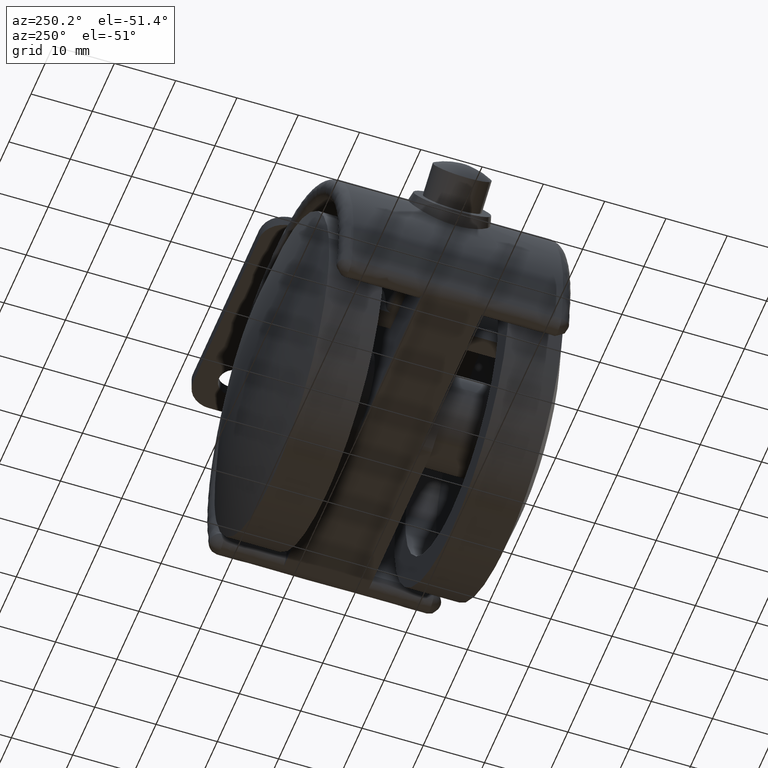
[diagram: clean part render]
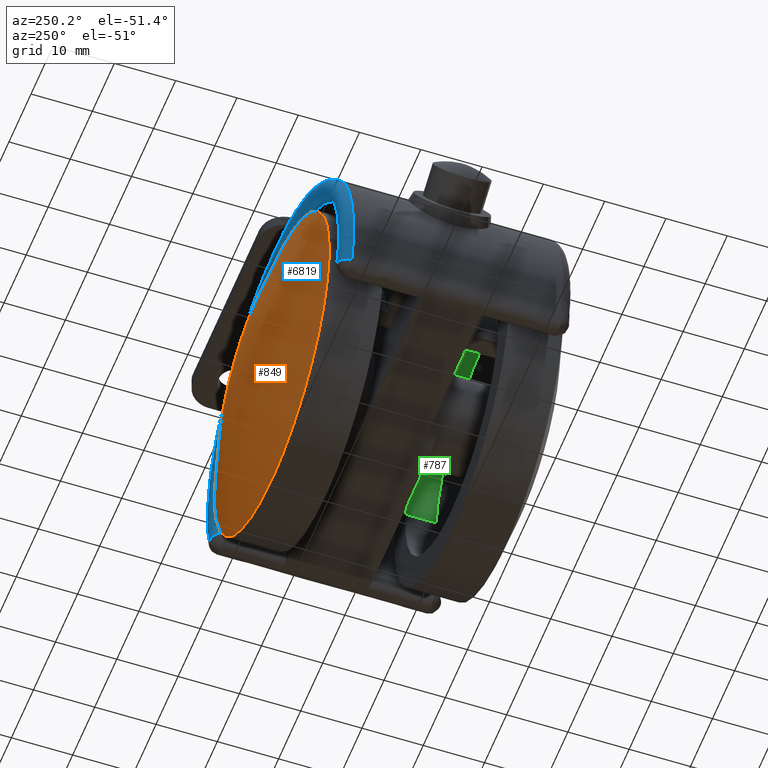
[diagram: same view with three faces highlighted in distinct colors, each labeled with its STEP entity id]
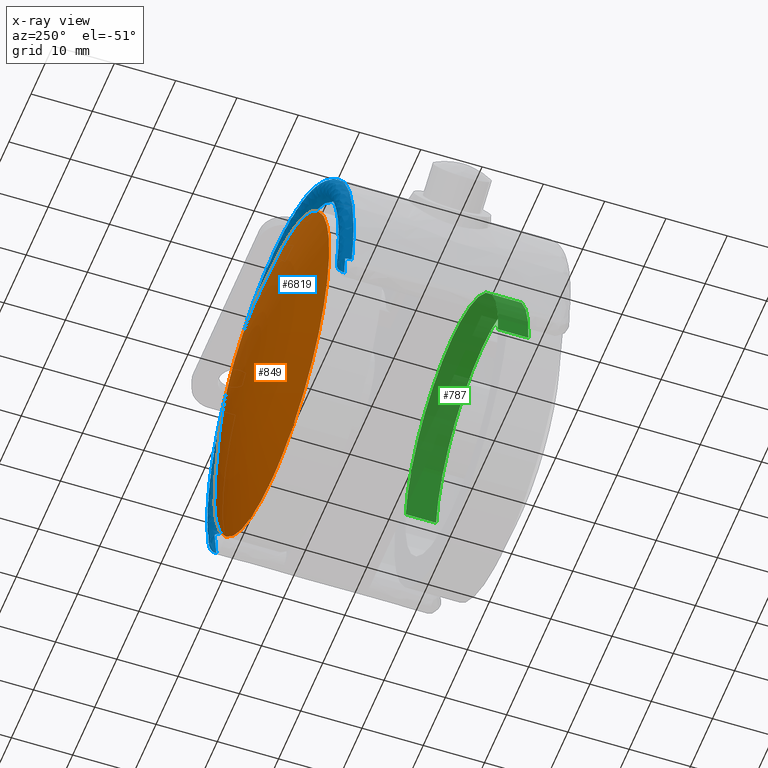
[diagram: x-ray of the same camera — body ghosted, the three highlighted faces saturated]
A machine part, auxiliary view with three faces highlighted in distinct colors.
The next image is the same camera in x-ray (body ghosted, the three faces saturated) — at least one of them is partly hidden behind the body in this view.
Their STEP definitions:

[orange] entity #849 — the highlighted face is a freeform B-spline surface patch.
#252=CARTESIAN_POINT('',(25.818250716227940,-19.100000010721399,3.068864603291616));
#253=VERTEX_POINT('',#252);
#254=CARTESIAN_POINT('',(0.0,-19.100000010721249,-26.0));
#255=VERTEX_POINT('',#254);
#256=CARTESIAN_POINT('',(25.818250716227940,-19.100000010721402,3.068864603291616));
#257=CARTESIAN_POINT('',(26.000000000000004,-19.100000010721246,1.539814227279839));
#258=CARTESIAN_POINT('',(26.0,-19.100000010721249,0.0));
#259=CARTESIAN_POINT('',(26.000000000000007,-19.100000010721242,-26.000000000000007));
#260=CARTESIAN_POINT('',(0.0,-19.100000010721249,-26.0));
#268=(BOUNDED_CURVE()B_SPLINE_CURVE(2,(#256,#257,#258,#259,#260),.UNSPECIFIED.,.F.,.U.)B_SPLINE_CURVE_WITH_KNOTS((3,2,3),(0.229562640421186,0.250000000000000,0.500000000000000),.UNSPECIFIED.)CURVE()GEOMETRIC_REPRESENTATION_ITEM()RATIONAL_B_SPLINE_CURVE((0.956027081329839,0.976056143875653,1.0,0.707106781186547,1.0))REPRESENTATION_ITEM(''));
#269=EDGE_CURVE('',#253,#255,#268,.T.);
#271=CARTESIAN_POINT('',(-25.951505815537288,-19.100000010721072,-1.587244752971166));
#272=VERTEX_POINT('',#271);
#273=CARTESIAN_POINT('',(0.0,-19.100000010721249,-26.0));
#274=CARTESIAN_POINT('',(-24.458374050980229,-19.100000010721249,-26.0));
#275=CARTESIAN_POINT('',(-25.951505815537292,-19.100000010721072,-1.587244752971166));
#283=(BOUNDED_CURVE()B_SPLINE_CURVE(2,(#273,#274,#275),.UNSPECIFIED.,.F.,.U.)B_SPLINE_CURVE_WITH_KNOTS((3,3),(0.500000000000000,0.739333077099850),.UNSPECIFIED.)CURVE()GEOMETRIC_REPRESENTATION_ITEM()RATIONAL_B_SPLINE_CURVE((1.0,0.719603858718787,0.976072287835629))REPRESENTATION_ITEM(''));
#284=EDGE_CURVE('',#255,#272,#283,.T.);
#351=CARTESIAN_POINT('',(0.0,-19.100000010721249,26.0));
#352=VERTEX_POINT('',#351);
#353=CARTESIAN_POINT('',(0.0,-19.100000010721249,26.0));
#354=CARTESIAN_POINT('',(23.092560641195718,-19.100000010721246,26.0));
#355=CARTESIAN_POINT('',(25.818250716227936,-19.100000010721409,3.068864603291616));
#363=(BOUNDED_CURVE()B_SPLINE_CURVE(2,(#353,#354,#355),.UNSPECIFIED.,.F.,.U.)B_SPLINE_CURVE_WITH_KNOTS((3,3),(0.0,0.229562640421186),.UNSPECIFIED.)CURVE()GEOMETRIC_REPRESENTATION_ITEM()RATIONAL_B_SPLINE_CURVE((1.0,0.731050637310895,0.956027081329839))REPRESENTATION_ITEM(''));
#364=EDGE_CURVE('',#352,#253,#363,.T.);
#398=CARTESIAN_POINT('',(-25.951505815537292,-19.100000010721072,-1.587244752971166));
#399=CARTESIAN_POINT('',(-25.999999999999996,-19.100000010721246,-0.794363184077576));
#400=CARTESIAN_POINT('',(-26.0,-19.100000010721249,0.0));
#401=CARTESIAN_POINT('',(-26.000000000000007,-19.100000010721242,26.000000000000007));
#402=CARTESIAN_POINT('',(0.0,-19.100000010721249,26.0));
#410=(BOUNDED_CURVE()B_SPLINE_CURVE(2,(#398,#399,#400,#401,#402),.UNSPECIFIED.,.F.,.U.)B_SPLINE_CURVE_WITH_KNOTS((3,2,3),(0.739333077099850,0.750000000000000,1.0),.UNSPECIFIED.)CURVE()GEOMETRIC_REPRESENTATION_ITEM()RATIONAL_B_SPLINE_CURVE((0.976072287835629,0.987502922467760,1.0,0.707106781186547,1.0))REPRESENTATION_ITEM(''));
#411=EDGE_CURVE('',#272,#352,#410,.T.);
#819=CARTESIAN_POINT('',(-27.509549926636083,-13.258914040041132,-27.510158300489543));
#820=CARTESIAN_POINT('',(-14.215357172331229,-18.207877278112218,-28.431343090072275));
#821=CARTESIAN_POINT('',(14.215437443623905,-18.207877278112218,-28.431343090072275));
#822=CARTESIAN_POINT('',(27.509695201312631,-13.258859959194144,-27.510148234047090));
#823=CARTESIAN_POINT('',(-28.430756452596867,-18.208103503328065,-14.215692599468955));
#824=CARTESIAN_POINT('',(-14.707876000288019,-23.499999999999972,-14.708201265049620));
#825=CARTESIAN_POINT('',(14.707959052736490,-23.499999999999972,-14.708201265049620));
#826=CARTESIAN_POINT('',(28.430906243680862,-18.208045739849442,-14.215687223510853));
#827=CARTESIAN_POINT('',(-28.430756452596867,-18.208103503328065,14.215694394626185));
#828=CARTESIAN_POINT('',(-14.707876000288019,-23.499999999999972,14.708203122400830));
#829=CARTESIAN_POINT('',(14.707959052736490,-23.499999999999972,14.708203122400830));
#830=CARTESIAN_POINT('',(28.430906243680862,-18.208045739849442,14.215689018667407));
#831=CARTESIAN_POINT('',(-27.509549701514796,-13.258912830575211,27.510161549345206));
#832=CARTESIAN_POINT('',(-14.215357052106134,-18.207875986291597,28.431346439925878));
#833=CARTESIAN_POINT('',(14.215437323398129,-18.207875986291597,28.431346439925878));
#834=CARTESIAN_POINT('',(27.509694976190243,-13.258858749729098,27.510151482901648));
#842=(BOUNDED_SURFACE()B_SPLINE_SURFACE(2,2,((#819,#823,#827,#831),(#820,#824,#828,#832),(#821,#825,#829,#833),(#822,#826,#830,#834)),.UNSPECIFIED.,.F.,.F.,.U.)B_SPLINE_SURFACE_WITH_KNOTS((3,1,3),(3,1,3),(14.714415427684781,42.997826829478001,71.281397942066192),(14.713789939880369,42.997826829477987,71.281867290782927),.UNSPECIFIED.)GEOMETRIC_REPRESENTATION_ITEM()RATIONAL_B_SPLINE_SURFACE(((1.069292375884866,1.034645421750261,1.034645421750261,1.069292384635299),(1.034646954134605,1.0,1.0,1.034646962885038),(1.034646954134605,1.0,1.0,1.034646962885038),(1.069292767157573,1.034645813022969,1.034645813022969,1.069292775908006)))REPRESENTATION_ITEM('')SURFACE());
#843=ORIENTED_EDGE('',*,*,#411,.F.);
#844=ORIENTED_EDGE('',*,*,#284,.F.);
#845=ORIENTED_EDGE('',*,*,#269,.F.);
#846=ORIENTED_EDGE('',*,*,#364,.F.);
#847=EDGE_LOOP('',(#843,#844,#845,#846));
#848=FACE_OUTER_BOUND('',#847,.T.);
#849=ADVANCED_FACE('',(#848),#842,.T.);

[blue] entity #6819 — the highlighted face is a freeform B-spline surface patch.
#6691=CARTESIAN_POINT('',(27.269766013083149,17.100000000000001,-6.352941176470590));
#6692=VERTEX_POINT('',#6691);
#6693=CARTESIAN_POINT('',(30.678486764718549,17.100000000000001,-7.147058823529410));
#6694=VERTEX_POINT('',#6693);
#6695=CARTESIAN_POINT('',(27.269766013083149,17.100000000000001,-6.352941176470587));
#6696=CARTESIAN_POINT('',(27.269766013083157,18.850000000000001,-6.352941176470586));
#6697=CARTESIAN_POINT('',(28.974126388900849,18.850000000000001,-6.750000000000000));
#6698=CARTESIAN_POINT('',(30.678486764718549,18.850000000000001,-7.147058823529414));
#6699=CARTESIAN_POINT('',(30.678486764718539,17.100000000000001,-7.147058823529413));
#6707=(BOUNDED_CURVE()B_SPLINE_CURVE(2,(#6695,#6696,#6697,#6698,#6699),.UNSPECIFIED.,.F.,.U.)B_SPLINE_CURVE_WITH_KNOTS((3,2,3),(0.0,0.500000000000000,1.0),.UNSPECIFIED.)CURVE()GEOMETRIC_REPRESENTATION_ITEM()RATIONAL_B_SPLINE_CURVE((1.0,0.707106781186547,1.0,0.707106781186547,1.0))REPRESENTATION_ITEM(''));
#6708=EDGE_CURVE('',#6692,#6694,#6707,.T.);
#6730=CARTESIAN_POINT('',(-29.430086460112978,16.852832165797366,-11.181016247803095));
#6731=CARTESIAN_POINT('',(-45.638703135949825,16.852832165797363,31.482457232296241));
#6732=CARTESIAN_POINT('',(0.0,16.852832165797366,31.482457232296237));
#6733=CARTESIAN_POINT('',(45.638703135949825,16.852832165797363,31.482457232296241));
#6734=CARTESIAN_POINT('',(29.430086460112978,16.852832165797366,-11.181016247803095));
#6735=CARTESIAN_POINT('',(-29.698141851580552,18.862721756905373,-11.282855285597710));
#6736=CARTESIAN_POINT('',(-46.054390002917053,18.862721756905366,31.769206046615952));
#6737=CARTESIAN_POINT('',(0.0,18.862721756905373,31.769206046615967));
#6738=CARTESIAN_POINT('',(46.054390002917053,18.862721756905366,31.769206046615952));
#6739=CARTESIAN_POINT('',(29.698141851580552,18.862721756905373,-11.282855285597710));
#6740=CARTESIAN_POINT('',(-27.800291036932059,18.849965456498239,-10.561827815180640));
#6741=CARTESIAN_POINT('',(-43.111298074068870,18.849965456498236,29.739004498060257));
#6742=CARTESIAN_POINT('',(0.0,18.849965456498239,29.739004498060261));
#6743=CARTESIAN_POINT('',(43.111298074068870,18.849965456498236,29.739004498060257));
#6744=CARTESIAN_POINT('',(27.800291036932059,18.849965456498239,-10.561827815180640));
#6745=CARTESIAN_POINT('',(-25.925038621418715,18.837361049994406,-9.849385880801549));
#6746=CARTESIAN_POINT('',(-40.203250610036449,18.837361049994399,27.732977296911073));
#6747=CARTESIAN_POINT('',(0.0,18.837361049994406,27.732977296911077));
#6748=CARTESIAN_POINT('',(40.203250610036449,18.837361049994399,27.732977296911073));
#6749=CARTESIAN_POINT('',(25.925038621418715,18.837361049994406,-9.849385880801549));
#6750=CARTESIAN_POINT('',(-26.191217065874046,16.851605128350823,-9.950511832854170));
#6751=CARTESIAN_POINT('',(-40.616026801643976,16.851605128350819,28.017718271256555));
#6752=CARTESIAN_POINT('',(0.0,16.851605128350823,28.017718271256541));
#6753=CARTESIAN_POINT('',(40.616026801643976,16.851605128350819,28.017718271256555));
#6754=CARTESIAN_POINT('',(26.191217065874046,16.851605128350823,-9.950511832854170));
#6762=(BOUNDED_SURFACE()B_SPLINE_SURFACE(2,2,((#6730,#6735,#6740,#6745,#6750),(#6731,#6736,#6741,#6746,#6751),(#6732,#6737,#6742,#6747,#6752),(#6733,#6738,#6743,#6748,#6753),(#6734,#6739,#6744,#6749,#6754)),.UNSPECIFIED.,.F.,.F.,.U.)B_SPLINE_SURFACE_WITH_KNOTS((3,2,3),(3,2,3),(0.0,66.116516624095979,132.233033248191990),(0.0,3.207778064986509,6.390598302477793),.UNSPECIFIED.)GEOMETRIC_REPRESENTATION_ITEM()RATIONAL_B_SPLINE_SURFACE(((0.993268617861399,0.650693886555314,1.0,0.653411631220239,0.987979757204071),(0.564002251718915,0.369479927783382,0.567824495385010,0.371023129776329,0.560999107085006),(0.993268617861399,0.650693886555314,1.0,0.653411631220239,0.987979757204071),(0.564002251718915,0.369479927783382,0.567824495385010,0.371023129776329,0.560999107085006),(0.993268617861399,0.650693886555314,1.0,0.653411631220239,0.987979757204071)))REPRESENTATION_ITEM('')SURFACE());
#6763=ORIENTED_EDGE('',*,*,#6708,.F.);
#6764=CARTESIAN_POINT('',(-27.269766013083149,17.100000000000001,-6.352941176470590));
#6765=VERTEX_POINT('',#6764);
#6766=CARTESIAN_POINT('',(-27.269766013083139,17.100000000000001,-6.352941176470594));
#6767=CARTESIAN_POINT('',(-31.615053142353418,17.099999999999998,12.299043783461450));
#6768=CARTESIAN_POINT('',(-15.807526571176730,17.100000000000001,23.111081837541530));
#6769=CARTESIAN_POINT('',(-2.775558E-014,17.099999999999998,33.923119891621596));
#6770=CARTESIAN_POINT('',(15.807526571176700,17.100000000000001,23.111081837541551));
#6771=CARTESIAN_POINT('',(31.615053142353418,17.099999999999998,12.299043783461483));
#6772=CARTESIAN_POINT('',(27.269766013083139,17.100000000000001,-6.352941176470580));
#6780=(BOUNDED_CURVE()B_SPLINE_CURVE(2,(#6766,#6767,#6768,#6769,#6770,#6771,#6772),.UNSPECIFIED.,.F.,.U.)B_SPLINE_CURVE_WITH_KNOTS((3,2,2,3),(0.0,0.333333333333333,0.666666666666667,1.0),.UNSPECIFIED.)CURVE()GEOMETRIC_REPRESENTATION_ITEM()RATIONAL_B_SPLINE_CURVE((1.0,0.825395779912198,1.0,0.825395779912198,1.0,0.825395779912198,1.0))REPRESENTATION_ITEM(''));
#6781=EDGE_CURVE('',#6765,#6692,#6780,.T.);
#6782=ORIENTED_EDGE('',*,*,#6781,.F.);
#6783=CARTESIAN_POINT('',(-30.678486764718549,17.100000000000001,-7.147058823529410));
#6784=VERTEX_POINT('',#6783);
#6785=CARTESIAN_POINT('',(-27.269766013083149,17.100000000000001,-6.352941176470587));
#6786=CARTESIAN_POINT('',(-27.269766013083157,18.850000000000001,-6.352941176470586));
#6787=CARTESIAN_POINT('',(-28.974126388900849,18.850000000000001,-6.750000000000000));
#6788=CARTESIAN_POINT('',(-30.678486764718549,18.850000000000001,-7.147058823529414));
#6789=CARTESIAN_POINT('',(-30.678486764718539,17.100000000000001,-7.147058823529413));
#6797=(BOUNDED_CURVE()B_SPLINE_CURVE(2,(#6785,#6786,#6787,#6788,#6789),.UNSPECIFIED.,.F.,.U.)B_SPLINE_CURVE_WITH_KNOTS((3,2,3),(0.0,0.500000000000000,1.0),.UNSPECIFIED.)CURVE()GEOMETRIC_REPRESENTATION_ITEM()RATIONAL_B_SPLINE_CURVE((1.0,0.707106781186547,1.0,0.707106781186547,1.0))REPRESENTATION_ITEM(''));
#6798=EDGE_CURVE('',#6765,#6784,#6797,.T.);
#6799=ORIENTED_EDGE('',*,*,#6798,.T.);
#6800=CARTESIAN_POINT('',(30.678486764718532,17.100000000000001,-7.147058823529418));
#6801=CARTESIAN_POINT('',(35.566934785147609,17.100000000000001,13.836424256394128));
#6802=CARTESIAN_POINT('',(17.783467392573819,17.100000000000001,25.999967067234220));
#6803=CARTESIAN_POINT('',(2.775558E-014,17.100000000000001,38.163509878074294));
#6804=CARTESIAN_POINT('',(-17.783467392573780,17.100000000000001,25.999967067234241));
#6805=CARTESIAN_POINT('',(-35.566934785147609,17.100000000000001,13.836424256394176));
#6806=CARTESIAN_POINT('',(-30.678486764718539,17.100000000000001,-7.147058823529403));
#6814=(BOUNDED_CURVE()B_SPLINE_CURVE(2,(#6800,#6801,#6802,#6803,#6804,#6805,#6806),.UNSPECIFIED.,.F.,.U.)B_SPLINE_CURVE_WITH_KNOTS((3,2,2,3),(0.0,0.333333333333333,0.666666666666667,1.0),.UNSPECIFIED.)CURVE()GEOMETRIC_REPRESENTATION_ITEM()RATIONAL_B_SPLINE_CURVE((1.0,0.825395779912198,1.0,0.825395779912198,1.0,0.825395779912198,1.0))REPRESENTATION_ITEM(''));
#6815=EDGE_CURVE('',#6694,#6784,#6814,.T.);
#6816=ORIENTED_EDGE('',*,*,#6815,.F.);
#6817=EDGE_LOOP('',(#6763,#6782,#6799,#6816));
#6818=FACE_OUTER_BOUND('',#6817,.T.);
#6819=ADVANCED_FACE('',(#6818),#6762,.T.);

[green] entity #787 — the highlighted face is a freeform B-spline surface patch.
#624=CARTESIAN_POINT('',(20.853201439090078,-15.208513235726169,2.478707272066182));
#625=VERTEX_POINT('',#624);
#643=CARTESIAN_POINT('',(20.853201422381630,-10.250000000000000,2.478707412633857));
#644=VERTEX_POINT('',#643);
#645=CARTESIAN_POINT('',(20.853201439090078,-15.208513235726169,2.478707272066182));
#646=CARTESIAN_POINT('',(20.853201422381630,-10.250000000000000,2.478707412633857));
#647=QUASI_UNIFORM_CURVE('',1,(#645,#646),.UNSPECIFIED.,.F.,.U.);
#648=EDGE_CURVE('',#625,#644,#647,.T.);
#667=CARTESIAN_POINT('',(-20.960832145505560,-10.250000000000000,-1.281996789165496));
#668=VERTEX_POINT('',#667);
#682=CARTESIAN_POINT('',(-20.960832162307849,-15.208513235725521,-1.281996514440769));
#683=VERTEX_POINT('',#682);
#684=CARTESIAN_POINT('',(-20.960832162307849,-15.208513235725521,-1.281996514440769));
#685=CARTESIAN_POINT('',(-20.960832145505560,-10.250000000000000,-1.281996789165496));
#686=QUASI_UNIFORM_CURVE('',1,(#684,#685),.UNSPECIFIED.,.F.,.U.);
#687=EDGE_CURVE('',#683,#668,#686,.T.);
#705=CARTESIAN_POINT('',(-20.960830766859200,-15.332476066619099,-1.282019330231997));
#706=CARTESIAN_POINT('',(-22.242850097091193,-15.332476066619101,19.678811436627200));
#707=CARTESIAN_POINT('',(-1.282019330231997,-15.332476066619099,20.960830766859200));
#708=CARTESIAN_POINT('',(18.512413307629519,-15.332476066619098,22.171510131383076));
#709=CARTESIAN_POINT('',(20.853200053636993,-15.332476066619103,2.478718927791928));
#710=CARTESIAN_POINT('',(-20.960830766859200,-10.122938098334521,-1.282019330231997));
#711=CARTESIAN_POINT('',(-22.242850097091193,-10.122938098334521,19.678811436627200));
#712=CARTESIAN_POINT('',(-1.282019330231997,-10.122938098334521,20.960830766859200));
#713=CARTESIAN_POINT('',(18.512413307629519,-10.122938098334521,22.171510131383076));
#714=CARTESIAN_POINT('',(20.853200053636993,-10.122938098334522,2.478718927791928));
#722=(BOUNDED_SURFACE()B_SPLINE_SURFACE(2,1,((#705,#710),(#706,#711),(#707,#712),(#708,#713),(#709,#714)),.UNSPECIFIED.,.F.,.F.,.U.)B_SPLINE_SURFACE_WITH_KNOTS((3,2,3),(2,2),(0.0,34.793939239339970,68.196120909106341),(0.0,5.209537968284581),.UNSPECIFIED.)GEOMETRIC_REPRESENTATION_ITEM()RATIONAL_B_SPLINE_SURFACE(((1.0,1.0),(0.707106781186548,0.707106781186548),(1.0,1.0),(0.718822509939086,0.718822509939086),(0.977505800795127,0.977505800795127)))REPRESENTATION_ITEM('')SURFACE());
#723=CARTESIAN_POINT('',(0.0,-15.208513235725951,21.0));
#724=VERTEX_POINT('',#723);
#725=CARTESIAN_POINT('',(0.0,-15.208513235725951,21.0));
#726=CARTESIAN_POINT('',(18.651675543566462,-15.208513235725952,21.000000000000004));
#727=CARTESIAN_POINT('',(20.853201439090071,-15.208513235726173,2.478707272066183));
#735=(BOUNDED_CURVE()B_SPLINE_CURVE(2,(#725,#726,#727),.UNSPECIFIED.,.F.,.U.)B_SPLINE_CURVE_WITH_KNOTS((3,3),(0.0,0.229562567978633),.UNSPECIFIED.)CURVE()GEOMETRIC_REPRESENTATION_ITEM()RATIONAL_B_SPLINE_CURVE((1.0,0.731050722182625,0.956026939339292))REPRESENTATION_ITEM(''));
#736=EDGE_CURVE('',#724,#625,#735,.T.);
#737=ORIENTED_EDGE('',*,*,#736,.F.);
#738=CARTESIAN_POINT('',(-20.960832162307849,-15.208513235725519,-1.281996514440768));
#739=CARTESIAN_POINT('',(-21.000000000000007,-15.208513235725952,-0.641596589389073));
#740=CARTESIAN_POINT('',(-21.0,-15.208513235725951,0.0));
#741=CARTESIAN_POINT('',(-21.000000000000007,-15.208513235725951,21.000000000000007));
#742=CARTESIAN_POINT('',(0.0,-15.208513235725951,21.0));
#750=(BOUNDED_CURVE()B_SPLINE_CURVE(2,(#738,#739,#740,#741,#742),.UNSPECIFIED.,.F.,.U.)B_SPLINE_CURVE_WITH_KNOTS((3,2,3),(0.739333150058574,0.750000000000000,1.0),.UNSPECIFIED.)CURVE()GEOMETRIC_REPRESENTATION_ITEM()RATIONAL_B_SPLINE_CURVE((0.976072444200270,0.987503007944223,1.0,0.707106781186547,1.0))REPRESENTATION_ITEM(''));
#751=EDGE_CURVE('',#683,#724,#750,.T.);
#752=ORIENTED_EDGE('',*,*,#751,.F.);
#753=ORIENTED_EDGE('',*,*,#687,.T.);
#754=CARTESIAN_POINT('',(0.0,-10.250000000000000,21.0));
#755=VERTEX_POINT('',#754);
#756=CARTESIAN_POINT('',(-20.960832145505563,-10.249999999999998,-1.281996789165495));
#757=CARTESIAN_POINT('',(-20.999999999999996,-10.249999999999996,-0.641596727136566));
#758=CARTESIAN_POINT('',(-21.0,-10.250000000000000,0.0));
#759=CARTESIAN_POINT('',(-21.000000000000007,-10.250000000000000,21.000000000000007));
#760=CARTESIAN_POINT('',(0.0,-10.250000000000000,21.0));
#768=(BOUNDED_CURVE()B_SPLINE_CURVE(2,(#756,#757,#758,#759,#760),.UNSPECIFIED.,.F.,.U.)B_SPLINE_CURVE_WITH_KNOTS((3,2,3),(0.739333147797076,0.750000000000000,1.0),.UNSPECIFIED.)CURVE()GEOMETRIC_REPRESENTATION_ITEM()RATIONAL_B_SPLINE_CURVE((0.976072439353441,0.987503005294712,1.0,0.707106781186547,1.0))REPRESENTATION_ITEM(''));
#769=EDGE_CURVE('',#668,#755,#768,.T.);
#770=ORIENTED_EDGE('',*,*,#769,.T.);
#771=CARTESIAN_POINT('',(0.0,-10.250000000000000,21.0));
#772=CARTESIAN_POINT('',(18.651675416953815,-10.250000000000000,21.000000000000004));
#773=CARTESIAN_POINT('',(20.853201422381634,-10.250000000000000,2.478707412633857));
#781=(BOUNDED_CURVE()B_SPLINE_CURVE(2,(#771,#772,#773),.UNSPECIFIED.,.F.,.U.)B_SPLINE_CURVE_WITH_KNOTS((3,3),(0.0,0.229562566839412),.UNSPECIFIED.)CURVE()GEOMETRIC_REPRESENTATION_ITEM()RATIONAL_B_SPLINE_CURVE((1.0,0.731050723517305,0.956026937106371))REPRESENTATION_ITEM(''));
#782=EDGE_CURVE('',#755,#644,#781,.T.);
#783=ORIENTED_EDGE('',*,*,#782,.T.);
#784=ORIENTED_EDGE('',*,*,#648,.F.);
#785=EDGE_LOOP('',(#737,#752,#753,#770,#783,#784));
#786=FACE_OUTER_BOUND('',#785,.T.);
#787=ADVANCED_FACE('',(#786),#722,.F.);